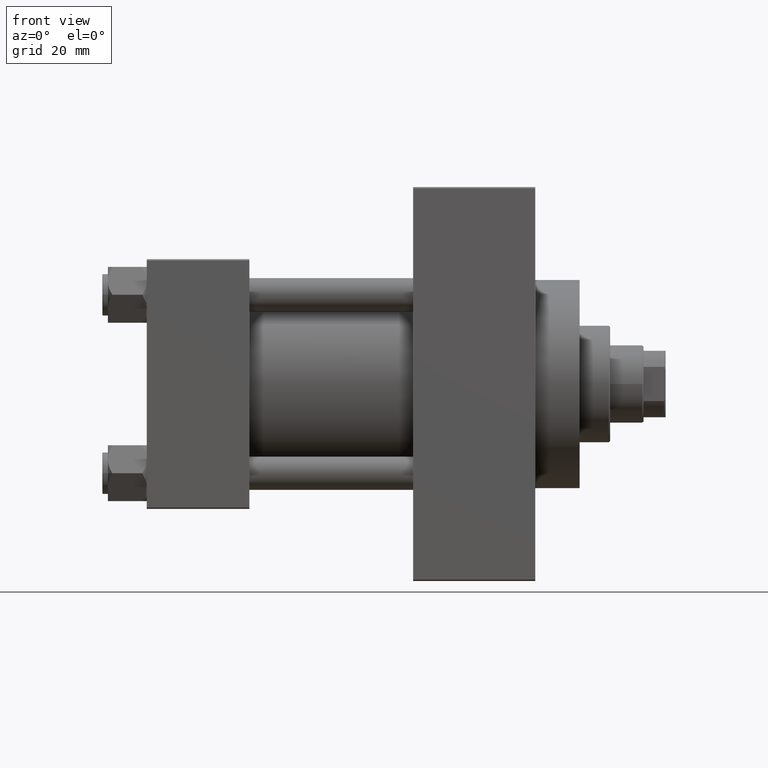
[diagram: clean part render]
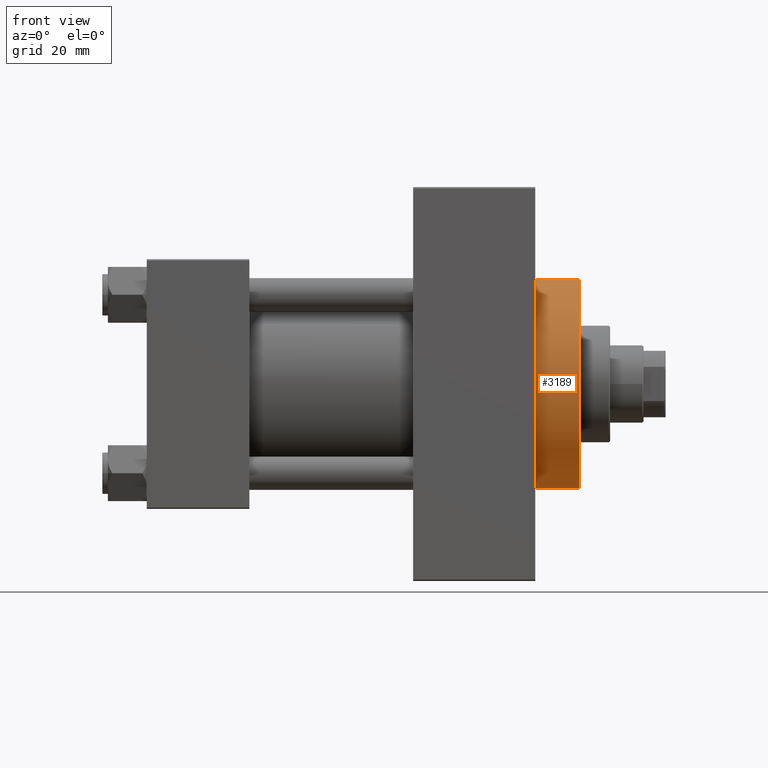
[diagram: same view with one face highlighted and labeled with its STEP entity id]
A machine part, front view. The second image highlights one B-rep face of the part: STEP entity #3189.
In plain terms, the highlighted cylindrical surface (partial cylindrical patch) has radius 37.5 mm, axis along (-1, -0, -0).
Its self-contained STEP definition (entity closure, byte-faithful):
#1286 = CARTESIAN_POINT ( 'NONE',  ( 156.0000000000000284, 4.592425496802575156E-15, -37.50000000000000711 ) ) ;
#3189 = ADVANCED_FACE ( 'NONE', ( #40111 ), #24644, .T. ) ;
#5242 = ORIENTED_EDGE ( 'NONE', *, *, #16271, .F. ) ;
#5668 = VERTEX_POINT ( 'NONE', #35333 ) ;
#5838 = AXIS2_PLACEMENT_3D ( 'NONE', #24944, #10827, #46882 ) ;
#6484 = CARTESIAN_POINT ( 'NONE',  ( 156.0000000000000284, 0.000000000000000000, 0.000000000000000000 ) ) ;
#9551 = EDGE_CURVE ( 'NONE', #5668, #19611, #42447, .T. ) ;
#10827 = DIRECTION ( 'NONE',  ( 1.000000000000000000, 0.000000000000000000, 0.000000000000000000 ) ) ;
#11653 = CARTESIAN_POINT ( 'NONE',  ( 140.0000000000000000, 4.592425496802575156E-15, -37.50000000000000711 ) ) ;
#12092 = VERTEX_POINT ( 'NONE', #29441 ) ;
#12257 = LINE ( 'NONE', #1286, #45733 ) ;
#15737 = VECTOR ( 'NONE', #43669, 1000.000000000000000 ) ;
#16271 = EDGE_CURVE ( 'NONE', #30213, #12092, #31364, .T. ) ;
#19611 = VERTEX_POINT ( 'NONE', #11653 ) ;
#22342 = ORIENTED_EDGE ( 'NONE', *, *, #9551, .T. ) ;
#22410 = AXIS2_PLACEMENT_3D ( 'NONE', #6484, #25116, #32260 ) ;
#22656 = EDGE_LOOP ( 'NONE', ( #29401, #5242, #34549, #22342 ) ) ;
#24644 = CYLINDRICAL_SURFACE ( 'NONE', #22410, 37.50000000000000711 ) ;
#24944 = CARTESIAN_POINT ( 'NONE',  ( 140.0000000000000000, 0.000000000000000000, 0.000000000000000000 ) ) ;
#25116 = DIRECTION ( 'NONE',  ( -1.000000000000000000, -0.000000000000000000, -0.000000000000000000 ) ) ;
#26003 = CARTESIAN_POINT ( 'NONE',  ( 156.0000000000000284, 0.000000000000000000, 37.50000000000000711 ) ) ;
#29078 = AXIS2_PLACEMENT_3D ( 'NONE', #31387, #31623, #45943 ) ;
#29152 = CARTESIAN_POINT ( 'NONE',  ( 156.0000000000000284, 0.000000000000000000, 37.50000000000000711 ) ) ;
#29401 = ORIENTED_EDGE ( 'NONE', *, *, #39504, .F. ) ;
#29441 = CARTESIAN_POINT ( 'NONE',  ( 156.0000000000000284, 4.592425496802575156E-15, -37.50000000000000711 ) ) ;
#30213 = VERTEX_POINT ( 'NONE', #29152 ) ;
#31364 = CIRCLE ( 'NONE', #29078, 37.50000000000000711 ) ;
#31387 = CARTESIAN_POINT ( 'NONE',  ( 156.0000000000000284, 0.000000000000000000, 0.000000000000000000 ) ) ;
#31623 = DIRECTION ( 'NONE',  ( 1.000000000000000000, 0.000000000000000000, 0.000000000000000000 ) ) ;
#32260 = DIRECTION ( 'NONE',  ( 0.000000000000000000, 0.000000000000000000, 1.000000000000000000 ) ) ;
#32282 = EDGE_CURVE ( 'NONE', #30213, #5668, #36496, .T. ) ;
#34549 = ORIENTED_EDGE ( 'NONE', *, *, #32282, .T. ) ;
#35333 = CARTESIAN_POINT ( 'NONE',  ( 140.0000000000000000, 0.000000000000000000, 37.50000000000000711 ) ) ;
#36496 = LINE ( 'NONE', #26003, #15737 ) ;
#39504 = EDGE_CURVE ( 'NONE', #12092, #19611, #12257, .T. ) ;
#40111 = FACE_OUTER_BOUND ( 'NONE', #22656, .T. ) ;
#42447 = CIRCLE ( 'NONE', #5838, 37.50000000000000711 ) ;
#43669 = DIRECTION ( 'NONE',  ( -1.000000000000000000, -0.000000000000000000, -0.000000000000000000 ) ) ;
#44485 = DIRECTION ( 'NONE',  ( -1.000000000000000000, -0.000000000000000000, -0.000000000000000000 ) ) ;
#45733 = VECTOR ( 'NONE', #44485, 1000.000000000000000 ) ;
#45943 = DIRECTION ( 'NONE',  ( 0.000000000000000000, 0.000000000000000000, -1.000000000000000000 ) ) ;
#46882 = DIRECTION ( 'NONE',  ( 0.000000000000000000, 0.000000000000000000, -1.000000000000000000 ) ) ;